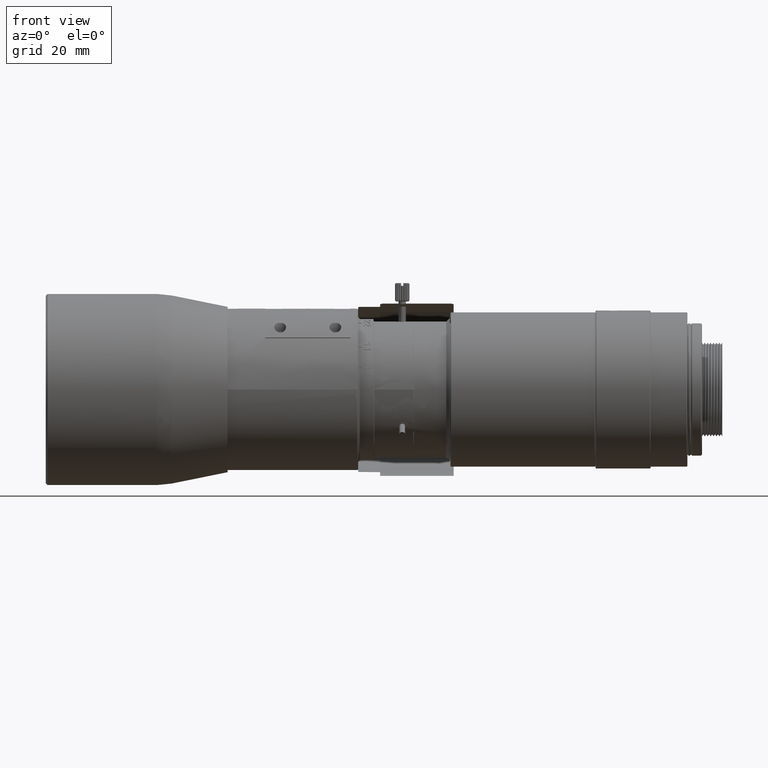
[diagram: clean part render]
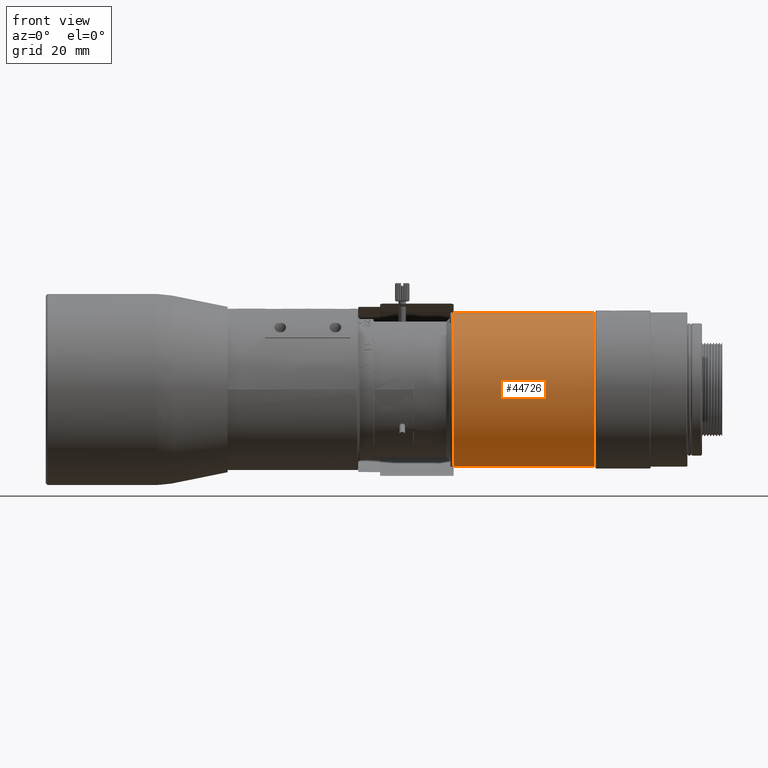
[diagram: same view with one face highlighted and labeled with its STEP entity id]
A machine part, front view. The second image highlights one B-rep face of the part: STEP entity #44726.
In plain terms, the highlighted face is a freeform B-spline surface patch.
Its self-contained STEP definition (entity closure, byte-faithful):
#496 = CARTESIAN_POINT ( 'NONE',  ( 64.73500235799998848, -2.000000000000000125E-09, 20.99999762099999856 ) ) ;
#507 = CARTESIAN_POINT ( 'NONE',  ( 64.73500235799998848, -8.999999999999999527E-09, -20.99999762099999856 ) ) ;
#2554 = EDGE_CURVE ( 'NONE', #45751, #12250, #34060, .T. ) ;
#2868 = CARTESIAN_POINT ( 'NONE',  ( 25.65500280599999883, -4.000000000000000249E-09, 20.99999762099999856 ) ) ;
#3009 = EDGE_CURVE ( 'NONE', #13064, #6169, #32856, .T. ) ;
#3482 = EDGE_LOOP ( 'NONE', ( #21037, #7280, #41238, #29995 ) ) ;
#4074 = EDGE_CURVE ( 'NONE', #13064, #45751, #12262, .T. ) ;
#6169 = VERTEX_POINT ( 'NONE', #496 ) ;
#7280 = ORIENTED_EDGE ( 'NONE', *, *, #3009, .T. ) ;
#9596 = CARTESIAN_POINT ( 'NONE',  ( 25.65500280599998817, -41.99999522099999893, 20.99999761299998724 ) ) ;
#12250 = VERTEX_POINT ( 'NONE', #19039 ) ;
#12262 = B_SPLINE_CURVE_WITH_KNOTS ( 'NONE', 1,
 ( #507, #25964 ),
 .UNSPECIFIED., .F., .F.,
 ( 2, 2 ),
 ( 0.0000000000000000000, 1.000000000000000000 ),
 .UNSPECIFIED. ) ;
#13064 = VERTEX_POINT ( 'NONE', #37719 ) ;
#15788 = CARTESIAN_POINT ( 'NONE',  ( 25.65500280599999883, -5.500000000000000446E-09, 20.99999762099999856 ) ) ;
#16766 = CARTESIAN_POINT ( 'NONE',  ( 25.65500280599998817, -41.99999522599998159, -20.99999760399999005 ) ) ;
#19039 = CARTESIAN_POINT ( 'NONE',  ( 25.65500280599999883, -5.500000000000000446E-09, 20.99999762099999856 ) ) ;
#19049 = CARTESIAN_POINT ( 'NONE',  ( 25.65500280600002014, -41.99999522100005578, -20.99999761300001921 ) ) ;
#21037 = ORIENTED_EDGE ( 'NONE', *, *, #4074, .F. ) ;
#21759 = CARTESIAN_POINT ( 'NONE',  ( 64.73500235799998848, -8.999999999999999527E-09, -20.99999762099999856 ) ) ;
#24176 = CARTESIAN_POINT ( 'NONE',  ( 64.73500235800004532, -41.99999522099999893, 20.99999761299998724 ) ) ;
#25326 =( BOUNDED_SURFACE ( )  B_SPLINE_SURFACE ( 1, 3, ( 
 ( #41522, #44550, #24176, #34607 ),
 ( #38075, #16766, #9596, #2868 ) ),
 .UNSPECIFIED., .F., .F., .F. ) 
 B_SPLINE_SURFACE_WITH_KNOTS ( ( 2, 2 ),
 ( 4, 4 ),
 ( 0.0000000000000000000, 1.000000000000000000 ),
 ( 0.0000000000000000000, 1.000000000000000000 ),
 .UNSPECIFIED. ) 
 GEOMETRIC_REPRESENTATION_ITEM ( )  RATIONAL_B_SPLINE_SURFACE ( (
 ( 1.000000000000000000, 0.3333333335299309974, 0.3333333335299309974, 1.000000000000000000),
 ( 1.000000000000000000, 0.3333333335299309974, 0.3333333335299309974, 1.000000000000000000) ) ) 
 REPRESENTATION_ITEM ( '' )  SURFACE ( )  );
#25964 = CARTESIAN_POINT ( 'NONE',  ( 25.65500280599999883, -5.500000000000000446E-09, -20.99999762099999856 ) ) ;
#26961 = FACE_OUTER_BOUND ( 'NONE', #3482, .T. ) ;
#28231 = CARTESIAN_POINT ( 'NONE',  ( 64.73500235800004532, -41.99999522099999893, 20.99999761299998724 ) ) ;
#29995 = ORIENTED_EDGE ( 'NONE', *, *, #2554, .F. ) ;
#31715 = CARTESIAN_POINT ( 'NONE',  ( 64.73500235800004532, -41.99999522599998159, -20.99999760399999005 ) ) ;
#32856 =( BOUNDED_CURVE ( )  B_SPLINE_CURVE ( 3, ( #21759, #31715, #28231, #35878 ),
 .UNSPECIFIED., .F., .F. ) 
 B_SPLINE_CURVE_WITH_KNOTS ( ( 4, 4 ),
 ( 0.0000000000000000000, 1.000000000000000000 ),
 .UNSPECIFIED. ) 
 CURVE ( )  GEOMETRIC_REPRESENTATION_ITEM ( )  RATIONAL_B_SPLINE_CURVE ( ( 1.000000000000000000, 0.3333333335299309974, 0.3333333335299309974, 1.000000000000000000 ) ) 
 REPRESENTATION_ITEM ( '' )  );
#34060 =( BOUNDED_CURVE ( )  B_SPLINE_CURVE ( 3, ( #36652, #19049, #40550, #15788 ),
 .UNSPECIFIED., .F., .F. ) 
 B_SPLINE_CURVE_WITH_KNOTS ( ( 4, 4 ),
 ( 0.0000000000000000000, 1.000000000000000000 ),
 .UNSPECIFIED. ) 
 CURVE ( )  GEOMETRIC_REPRESENTATION_ITEM ( )  RATIONAL_B_SPLINE_CURVE ( ( 1.000000000000000000, 0.3333333335299309974, 0.3333333335299309974, 1.000000000000000000 ) ) 
 REPRESENTATION_ITEM ( '' )  );
#34607 = CARTESIAN_POINT ( 'NONE',  ( 64.73500235799998848, -4.000000000000000249E-09, 20.99999762099999856 ) ) ;
#35014 = CARTESIAN_POINT ( 'NONE',  ( 25.65500280599999883, -5.500000000000000446E-09, -20.99999762099999856 ) ) ;
#35878 = CARTESIAN_POINT ( 'NONE',  ( 64.73500235799998848, -2.000000000000000125E-09, 20.99999762099999856 ) ) ;
#36652 = CARTESIAN_POINT ( 'NONE',  ( 25.65500280599999883, -5.500000000000000446E-09, -20.99999762099999856 ) ) ;
#36710 = EDGE_CURVE ( 'NONE', #12250, #6169, #43646, .T. ) ;
#37719 = CARTESIAN_POINT ( 'NONE',  ( 64.73500235799998848, -8.999999999999999527E-09, -20.99999762099999856 ) ) ;
#38075 = CARTESIAN_POINT ( 'NONE',  ( 25.65500280599999883, -8.999999999999999527E-09, -20.99999762099999856 ) ) ;
#40550 = CARTESIAN_POINT ( 'NONE',  ( 25.65500280600002014, -41.99999522600003843, 20.99999760400001847 ) ) ;
#41238 = ORIENTED_EDGE ( 'NONE', *, *, #36710, .F. ) ;
#41522 = CARTESIAN_POINT ( 'NONE',  ( 64.73500235799998848, -8.999999999999999527E-09, -20.99999762099999856 ) ) ;
#42723 = CARTESIAN_POINT ( 'NONE',  ( 25.65500280599999883, -5.500000000000000446E-09, 20.99999762099999856 ) ) ;
#43418 = CARTESIAN_POINT ( 'NONE',  ( 64.73500235799998848, -2.000000000000000125E-09, 20.99999762099999856 ) ) ;
#43646 = B_SPLINE_CURVE_WITH_KNOTS ( 'NONE', 1,
 ( #42723, #43418 ),
 .UNSPECIFIED., .F., .F.,
 ( 2, 2 ),
 ( 0.0000000000000000000, 1.000000000000000000 ),
 .UNSPECIFIED. ) ;
#44550 = CARTESIAN_POINT ( 'NONE',  ( 64.73500235800004532, -41.99999522599998159, -20.99999760399999005 ) ) ;
#44726 = ADVANCED_FACE ( 'NONE', ( #26961 ), #25326, .F. ) ;
#45751 = VERTEX_POINT ( 'NONE', #35014 ) ;